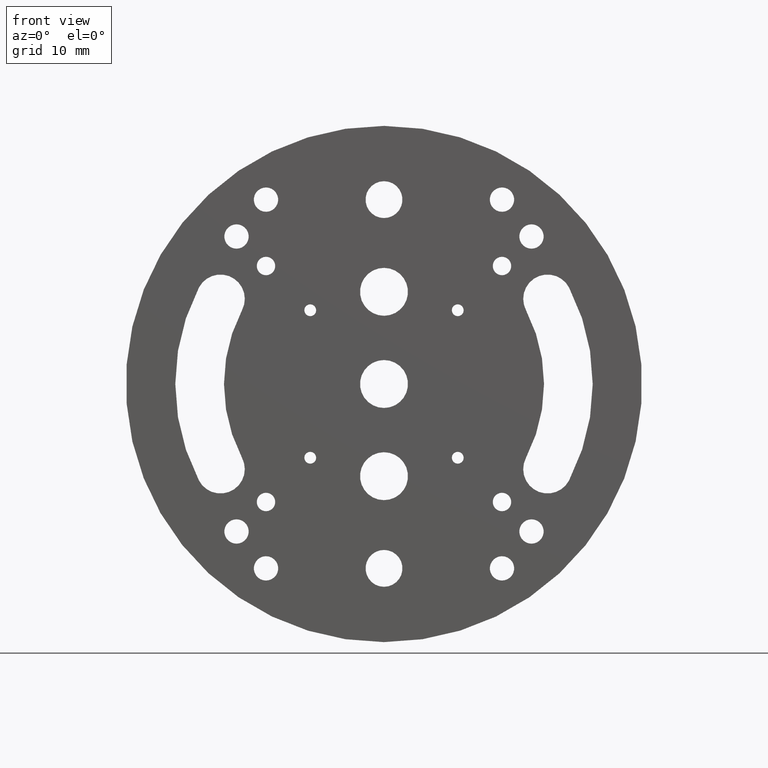
[diagram: clean part render]
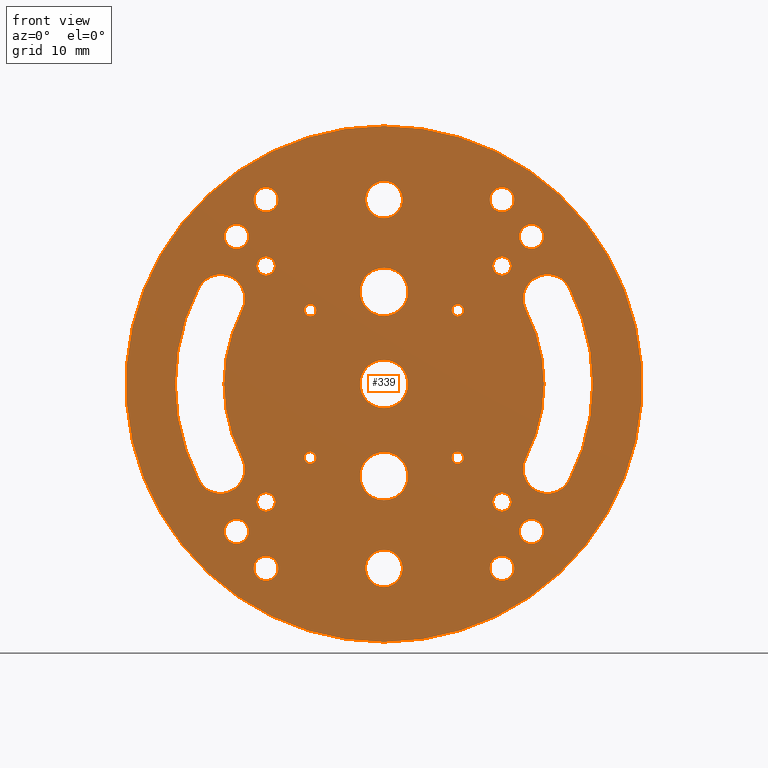
[diagram: same view with one face highlighted and labeled with its STEP entity id]
A machine part, front view. The second image highlights one B-rep face of the part: STEP entity #339.
In plain terms, the highlighted planar face has unit normal (0, 1, 0).
Its self-contained STEP definition (entity closure, byte-faithful):
#9 = FACE_BOUND ( 'NONE', #1288, .T. ) ;
#11 = AXIS2_PLACEMENT_3D ( 'NONE', #1037, #756, #1520 ) ;
#12 = CARTESIAN_POINT ( 'NONE',  ( -16.00000000000000711, 0.000000000000000000, -16.00000000000000711 ) ) ;
#16 = EDGE_LOOP ( 'NONE', ( #1379, #774, #432, #1231 ) ) ;
#21 = EDGE_LOOP ( 'NONE', ( #99 ) ) ;
#31 = DIRECTION ( 'NONE',  ( -0.000000000000000000, 1.000000000000000000, -0.000000000000000000 ) ) ;
#35 = AXIS2_PLACEMENT_3D ( 'NONE', #610, #1359, #264 ) ;
#39 = DIRECTION ( 'NONE',  ( 0.000000000000000000, 0.000000000000000000, 1.000000000000000000 ) ) ;
#41 = FACE_BOUND ( 'NONE', #1237, .T. ) ;
#47 = AXIS2_PLACEMENT_3D ( 'NONE', #836, #1149, #1155 ) ;
#50 = DIRECTION ( 'NONE',  ( 0.000000000000000000, 0.000000000000000000, 1.000000000000000000 ) ) ;
#55 = DIRECTION ( 'NONE',  ( 0.000000000000000000, 0.000000000000000000, 1.000000000000000000 ) ) ;
#56 = EDGE_LOOP ( 'NONE', ( #1708 ) ) ;
#63 = EDGE_CURVE ( 'NONE', #1917, #1917, #430, .T. ) ;
#66 = AXIS2_PLACEMENT_3D ( 'NONE', #1652, #720, #288 ) ;
#68 = ORIENTED_EDGE ( 'NONE', *, *, #1364, .T. ) ;
#81 = AXIS2_PLACEMENT_3D ( 'NONE', #190, #805, #785 ) ;
#83 = VERTEX_POINT ( 'NONE', #1605 ) ;
#87 = DIRECTION ( 'NONE',  ( -0.000000000000000000, 1.000000000000000000, -0.000000000000000000 ) ) ;
#91 = VERTEX_POINT ( 'NONE', #1130 ) ;
#96 = DIRECTION ( 'NONE',  ( 0.000000000000000000, 0.000000000000000000, 1.000000000000000000 ) ) ;
#97 = CARTESIAN_POINT ( 'NONE',  ( 22.17527082945552763, 0.000000000000000000, -11.54371533087587842 ) ) ;
#99 = ORIENTED_EDGE ( 'NONE', *, *, #1381, .T. ) ;
#125 = EDGE_LOOP ( 'NONE', ( #306 ) ) ;
#127 = CIRCLE ( 'NONE', #66, 3.300000000000002487 ) ;
#132 = ORIENTED_EDGE ( 'NONE', *, *, #917, .T. ) ;
#135 = FACE_BOUND ( 'NONE', #1560, .T. ) ;
#143 = ORIENTED_EDGE ( 'NONE', *, *, #1079, .T. ) ;
#145 = FACE_BOUND ( 'NONE', #21, .T. ) ;
#147 = AXIS2_PLACEMENT_3D ( 'NONE', #833, #1003, #1883 ) ;
#154 = EDGE_LOOP ( 'NONE', ( #1216 ) ) ;
#159 = AXIS2_PLACEMENT_3D ( 'NONE', #97, #1015, #1620 ) ;
#161 = ORIENTED_EDGE ( 'NONE', *, *, #1461, .T. ) ;
#164 = DIRECTION ( 'NONE',  ( 0.000000000000000000, 0.000000000000000000, 1.000000000000000000 ) ) ;
#177 = ORIENTED_EDGE ( 'NONE', *, *, #1976, .F. ) ;
#178 = DIRECTION ( 'NONE',  ( -0.000000000000000000, 1.000000000000000000, -0.000000000000000000 ) ) ;
#180 = CIRCLE ( 'NONE', #1292, 1.649999999999998579 ) ;
#190 = CARTESIAN_POINT ( 'NONE',  ( 6.938893903907228378E-15, 0.000000000000000000, 24.99999999999999645 ) ) ;
#196 = DIRECTION ( 'NONE',  ( 0.000000000000000000, 1.000000000000000000, 0.000000000000000000 ) ) ;
#204 = AXIS2_PLACEMENT_3D ( 'NONE', #1411, #1546, #1240 ) ;
#218 = VERTEX_POINT ( 'NONE', #1160 ) ;
#222 = CARTESIAN_POINT ( 'NONE',  ( -20.00000000000001066, 0.000000000000000000, 21.64999999999999147 ) ) ;
#226 = CARTESIAN_POINT ( 'NONE',  ( -20.00000000000001066, 0.000000000000000000, -20.00000000000000711 ) ) ;
#232 = EDGE_CURVE ( 'NONE', #83, #83, #1007, .T. ) ;
#233 = EDGE_LOOP ( 'NONE', ( #988 ) ) ;
#243 = CARTESIAN_POINT ( 'NONE',  ( 16.00000000000000000, 0.000000000000000000, 17.24999999999998934 ) ) ;
#249 = VERTEX_POINT ( 'NONE', #1756 ) ;
#260 = CARTESIAN_POINT ( 'NONE',  ( 3.469446951953614189E-15, 0.000000000000000000, -22.50000000000000355 ) ) ;
#262 = EDGE_LOOP ( 'NONE', ( #1254 ) ) ;
#264 = DIRECTION ( 'NONE',  ( 0.000000000000000000, 0.000000000000000000, 1.000000000000000000 ) ) ;
#284 = FACE_OUTER_BOUND ( 'NONE', #1510, .T. ) ;
#288 = DIRECTION ( 'NONE',  ( 0.000000000000000000, 0.000000000000000000, 1.000000000000000000 ) ) ;
#306 = ORIENTED_EDGE ( 'NONE', *, *, #232, .T. ) ;
#316 = FACE_BOUND ( 'NONE', #262, .T. ) ;
#328 = EDGE_CURVE ( 'NONE', #1441, #1407, #680, .T. ) ;
#339 = ADVANCED_FACE ( 'NONE', ( #284, #1807, #452, #1072, #135, #145, #779, #604, #769, #1363, #1206, #316, #1529, #9, #1374, #628, #1726, #1551, #1879, #1109, #484, #1868, #790, #41 ), #494, .F. ) ;
#354 = DIRECTION ( 'NONE',  ( 0.000000000000000000, -0.000000000000000000, 1.000000000000000000 ) ) ;
#361 = CIRCLE ( 'NONE', #81, 2.499999999999998668 ) ;
#362 = CARTESIAN_POINT ( 'NONE',  ( 15.99999999999999289, 0.000000000000000000, -16.00000000000000711 ) ) ;
#364 = VERTEX_POINT ( 'NONE', #809 ) ;
#373 = DIRECTION ( 'NONE',  ( -1.776356839400250465E-15, 0.000000000000000000, 1.000000000000000000 ) ) ;
#374 = VERTEX_POINT ( 'NONE', #968 ) ;
#377 = VERTEX_POINT ( 'NONE', #1707 ) ;
#386 = CARTESIAN_POINT ( 'NONE',  ( -16.00000000000000711, 0.000000000000000000, -14.75000000000000711 ) ) ;
#392 = AXIS2_PLACEMENT_3D ( 'NONE', #638, #1236, #50 ) ;
#394 = CIRCLE ( 'NONE', #47, 3.300000000000002487 ) ;
#410 = EDGE_CURVE ( 'NONE', #1418, #1418, #424, .T. ) ;
#424 = CIRCLE ( 'NONE', #1866, 1.249999999999997558 ) ;
#428 = CARTESIAN_POINT ( 'NONE',  ( 16.00000000000000000, 0.000000000000000000, -23.35000000000000142 ) ) ;
#430 = CIRCLE ( 'NONE', #622, 3.250000000000012434 ) ;
#432 = ORIENTED_EDGE ( 'NONE', *, *, #1172, .T. ) ;
#434 = EDGE_CURVE ( 'NONE', #514, #514, #613, .T. ) ;
#436 = CIRCLE ( 'NONE', #1745, 21.69999999999999218 ) ;
#440 = AXIS2_PLACEMENT_3D ( 'NONE', #748, #1967, #768 ) ;
#441 = CARTESIAN_POINT ( 'NONE',  ( 10.00000000000000178, 0.000000000000000000, 9.999999999999998224 ) ) ;
#452 = FACE_BOUND ( 'NONE', #1186, .T. ) ;
#459 = ORIENTED_EDGE ( 'NONE', *, *, #591, .T. ) ;
#478 = DIRECTION ( 'NONE',  ( 0.000000000000000000, 1.000000000000000000, 0.000000000000000000 ) ) ;
#484 = FACE_BOUND ( 'NONE', #233, .T. ) ;
#489 = ORIENTED_EDGE ( 'NONE', *, *, #766, .T. ) ;
#494 = PLANE ( 'NONE',  #1121 ) ;
#498 = CIRCLE ( 'NONE', #983, 1.250000000000001110 ) ;
#510 = ORIENTED_EDGE ( 'NONE', *, *, #645, .T. ) ;
#514 = VERTEX_POINT ( 'NONE', #1769 ) ;
#521 = CARTESIAN_POINT ( 'NONE',  ( -20.00000000000001066, 0.000000000000000000, 19.99999999999999289 ) ) ;
#527 = CIRCLE ( 'NONE', #1970, 1.249999999999999334 ) ;
#529 = CIRCLE ( 'NONE', #1714, 0.7999999999999986011 ) ;
#531 = DIRECTION ( 'NONE',  ( -0.000000000000000000, 1.000000000000000000, -0.000000000000000000 ) ) ;
#534 = DIRECTION ( 'NONE',  ( -0.000000000000000000, 1.000000000000000000, -0.000000000000000000 ) ) ;
#571 = EDGE_LOOP ( 'NONE', ( #1604 ) ) ;
#585 = CIRCLE ( 'NONE', #749, 0.7999999999999986011 ) ;
#591 = EDGE_CURVE ( 'NONE', #1586, #1586, #1881, .T. ) ;
#604 = FACE_BOUND ( 'NONE', #1862, .T. ) ;
#610 = CARTESIAN_POINT ( 'NONE',  ( 0.000000000000000000, 0.000000000000000000, 0.000000000000000000 ) ) ;
#613 = CIRCLE ( 'NONE', #392, 3.250000000000013323 ) ;
#622 = AXIS2_PLACEMENT_3D ( 'NONE', #1169, #1895, #1587 ) ;
#628 = FACE_BOUND ( 'NONE', #1246, .T. ) ;
#635 = VERTEX_POINT ( 'NONE', #868 ) ;
#636 = CIRCLE ( 'NONE', #1686, 1.649999999999998579 ) ;
#638 = CARTESIAN_POINT ( 'NONE',  ( 0.000000000000000000, 0.000000000000000000, -12.50000000000000000 ) ) ;
#645 = EDGE_CURVE ( 'NONE', #984, #984, #636, .T. ) ;
#652 = AXIS2_PLACEMENT_3D ( 'NONE', #674, #986, #1295 ) ;
#674 = CARTESIAN_POINT ( 'NONE',  ( -15.99999999999999645, 0.000000000000000000, -25.00000000000000355 ) ) ;
#679 = DIRECTION ( 'NONE',  ( 0.000000000000000000, 0.000000000000000000, 1.000000000000000000 ) ) ;
#680 = CIRCLE ( 'NONE', #11, 3.300000000000004263 ) ;
#710 = CARTESIAN_POINT ( 'NONE',  ( -19.24813507996739048, -1.734723475976807094E-15, 10.01994490720026221 ) ) ;
#711 = AXIS2_PLACEMENT_3D ( 'NONE', #1909, #87, #96 ) ;
#717 = ORIENTED_EDGE ( 'NONE', *, *, #911, .T. ) ;
#720 = DIRECTION ( 'NONE',  ( 0.000000000000000000, 1.000000000000000000, 0.000000000000000000 ) ) ;
#726 = VERTEX_POINT ( 'NONE', #260 ) ;
#748 = CARTESIAN_POINT ( 'NONE',  ( 3.469446951953614189E-15, 0.000000000000000000, -25.00000000000000000 ) ) ;
#749 = AXIS2_PLACEMENT_3D ( 'NONE', #1954, #751, #1798 ) ;
#751 = DIRECTION ( 'NONE',  ( -0.000000000000000000, 1.000000000000000000, -0.000000000000000000 ) ) ;
#755 = AXIS2_PLACEMENT_3D ( 'NONE', #1877, #1539, #1550 ) ;
#756 = DIRECTION ( 'NONE',  ( -0.000000000000000000, -1.000000000000000000, -0.000000000000000000 ) ) ;
#757 = ORIENTED_EDGE ( 'NONE', *, *, #996, .T. ) ;
#766 = EDGE_CURVE ( 'NONE', #726, #726, #1589, .T. ) ;
#768 = DIRECTION ( 'NONE',  ( 0.000000000000000000, 0.000000000000000000, 1.000000000000000000 ) ) ;
#769 = FACE_BOUND ( 'NONE', #1426, .T. ) ;
#774 = ORIENTED_EDGE ( 'NONE', *, *, #1294, .T. ) ;
#779 = FACE_BOUND ( 'NONE', #1592, .T. ) ;
#781 = CIRCLE ( 'NONE', #711, 1.649999999999998579 ) ;
#785 = DIRECTION ( 'NONE',  ( 0.000000000000000000, 0.000000000000000000, 1.000000000000000000 ) ) ;
#787 = DIRECTION ( 'NONE',  ( -0.000000000000000000, 1.000000000000000000, -0.000000000000000000 ) ) ;
#790 = FACE_BOUND ( 'NONE', #16, .T. ) ;
#795 = CARTESIAN_POINT ( 'NONE',  ( -25.10240657894365768, -1.734723475976807094E-15, 13.06748575455149819 ) ) ;
#805 = DIRECTION ( 'NONE',  ( -0.000000000000000000, 1.000000000000000000, -0.000000000000000000 ) ) ;
#809 = CARTESIAN_POINT ( 'NONE',  ( 25.10240657894365768, -1.734723475976807094E-15, 13.06748575455149819 ) ) ;
#814 = ORIENTED_EDGE ( 'NONE', *, *, #1668, .T. ) ;
#819 = VERTEX_POINT ( 'NONE', #1583 ) ;
#831 = ORIENTED_EDGE ( 'NONE', *, *, #1858, .F. ) ;
#833 = CARTESIAN_POINT ( 'NONE',  ( 0.000000000000000000, 0.000000000000000000, 0.000000000000000000 ) ) ;
#836 = CARTESIAN_POINT ( 'NONE',  ( -22.17527082945552053, 0.000000000000000000, 11.54371533087588020 ) ) ;
#847 = DIRECTION ( 'NONE',  ( 0.000000000000000000, 1.000000000000000000, 0.000000000000000000 ) ) ;
#853 = EDGE_CURVE ( 'NONE', #1659, #1659, #1224, .T. ) ;
#857 = CIRCLE ( 'NONE', #159, 3.300000000000004263 ) ;
#868 = CARTESIAN_POINT ( 'NONE',  ( 25.10240657894365413, 0.000000000000000000, -13.06748575455150174 ) ) ;
#888 = ORIENTED_EDGE ( 'NONE', *, *, #1436, .T. ) ;
#911 = EDGE_CURVE ( 'NONE', #1614, #1614, #498, .T. ) ;
#917 = EDGE_CURVE ( 'NONE', #1337, #1337, #1876, .T. ) ;
#937 = CARTESIAN_POINT ( 'NONE',  ( -9.999999999999998224, 0.000000000000000000, 9.999999999999998224 ) ) ;
#956 = ORIENTED_EDGE ( 'NONE', *, *, #1519, .T. ) ;
#965 = DIRECTION ( 'NONE',  ( -0.000000000000000000, 1.000000000000000000, -0.000000000000000000 ) ) ;
#968 = CARTESIAN_POINT ( 'NONE',  ( 19.24813507996739048, -1.734723475976807094E-15, 10.01994490720026221 ) ) ;
#978 = CARTESIAN_POINT ( 'NONE',  ( 0.000000000000000000, 0.000000000000000000, 0.000000000000000000 ) ) ;
#982 = CIRCLE ( 'NONE', #147, 28.30000000000000071 ) ;
#983 = AXIS2_PLACEMENT_3D ( 'NONE', #1234, #1265, #55 ) ;
#984 = VERTEX_POINT ( 'NONE', #222 ) ;
#986 = DIRECTION ( 'NONE',  ( -0.000000000000000000, 1.000000000000000000, -0.000000000000000000 ) ) ;
#988 = ORIENTED_EDGE ( 'NONE', *, *, #434, .T. ) ;
#996 = EDGE_CURVE ( 'NONE', #1942, #1942, #529, .T. ) ;
#998 = CARTESIAN_POINT ( 'NONE',  ( 0.000000000000000000, 0.000000000000000000, 35.00000000000000711 ) ) ;
#1003 = DIRECTION ( 'NONE',  ( -0.000000000000000000, -1.000000000000000000, -0.000000000000000000 ) ) ;
#1007 = CIRCLE ( 'NONE', #1508, 3.250000000000013323 ) ;
#1009 = VERTEX_POINT ( 'NONE', #998 ) ;
#1012 = CARTESIAN_POINT ( 'NONE',  ( 15.99999999999999289, 0.000000000000000000, -14.75000000000000888 ) ) ;
#1013 = AXIS2_PLACEMENT_3D ( 'NONE', #1522, #478, #1709 ) ;
#1015 = DIRECTION ( 'NONE',  ( 0.000000000000000000, 1.000000000000000000, 0.000000000000000000 ) ) ;
#1021 = VERTEX_POINT ( 'NONE', #1633 ) ;
#1030 = EDGE_LOOP ( 'NONE', ( #888 ) ) ;
#1033 = CIRCLE ( 'NONE', #1934, 0.7999999999999986011 ) ;
#1037 = CARTESIAN_POINT ( 'NONE',  ( -22.17527082945552763, 0.000000000000000000, -11.54371533087587842 ) ) ;
#1039 = EDGE_CURVE ( 'NONE', #377, #374, #436, .T. ) ;
#1042 = CIRCLE ( 'NONE', #1549, 21.69999999999999218 ) ;
#1064 = EDGE_CURVE ( 'NONE', #1407, #1095, #1042, .T. ) ;
#1072 = FACE_BOUND ( 'NONE', #1725, .T. ) ;
#1079 = EDGE_CURVE ( 'NONE', #1479, #1479, #180, .T. ) ;
#1081 = CARTESIAN_POINT ( 'NONE',  ( 0.000000000000000000, 0.000000000000000000, 0.000000000000000000 ) ) ;
#1085 = CARTESIAN_POINT ( 'NONE',  ( 19.99999999999998934, 0.000000000000000000, -20.00000000000000711 ) ) ;
#1095 = VERTEX_POINT ( 'NONE', #710 ) ;
#1109 = FACE_BOUND ( 'NONE', #1758, .T. ) ;
#1111 = EDGE_CURVE ( 'NONE', #635, #377, #857, .T. ) ;
#1121 = AXIS2_PLACEMENT_3D ( 'NONE', #1081, #196, #354 ) ;
#1130 = CARTESIAN_POINT ( 'NONE',  ( 19.99999999999998934, 0.000000000000000000, -18.35000000000000853 ) ) ;
#1139 = ORIENTED_EDGE ( 'NONE', *, *, #1306, .T. ) ;
#1145 = CARTESIAN_POINT ( 'NONE',  ( 16.00000000000000355, 0.000000000000000000, 24.99999999999999645 ) ) ;
#1146 = ORIENTED_EDGE ( 'NONE', *, *, #63, .T. ) ;
#1149 = DIRECTION ( 'NONE',  ( -0.000000000000000000, -1.000000000000000000, -0.000000000000000000 ) ) ;
#1155 = DIRECTION ( 'NONE',  ( 0.000000000000000000, 0.000000000000000000, 1.000000000000000000 ) ) ;
#1160 = CARTESIAN_POINT ( 'NONE',  ( -15.99999999999999645, 0.000000000000000000, -23.35000000000000497 ) ) ;
#1162 = CARTESIAN_POINT ( 'NONE',  ( -16.00000000000000000, 0.000000000000000000, 17.24999999999999289 ) ) ;
#1169 = CARTESIAN_POINT ( 'NONE',  ( 0.000000000000000000, 0.000000000000000000, 0.000000000000000000 ) ) ;
#1170 = CARTESIAN_POINT ( 'NONE',  ( -20.00000000000001066, 0.000000000000000000, -18.35000000000000853 ) ) ;
#1172 = EDGE_CURVE ( 'NONE', #364, #635, #1691, .T. ) ;
#1185 = CIRCLE ( 'NONE', #204, 1.649999999999998579 ) ;
#1186 = EDGE_LOOP ( 'NONE', ( #132 ) ) ;
#1203 = DIRECTION ( 'NONE',  ( 0.000000000000000000, 0.000000000000000000, 1.000000000000000000 ) ) ;
#1206 = FACE_BOUND ( 'NONE', #571, .T. ) ;
#1211 = EDGE_LOOP ( 'NONE', ( #717 ) ) ;
#1216 = ORIENTED_EDGE ( 'NONE', *, *, #1393, .T. ) ;
#1224 = CIRCLE ( 'NONE', #1448, 1.249999999999997558 ) ;
#1231 = ORIENTED_EDGE ( 'NONE', *, *, #1111, .T. ) ;
#1234 = CARTESIAN_POINT ( 'NONE',  ( -16.00000000000000000, 0.000000000000000000, 15.99999999999999289 ) ) ;
#1236 = DIRECTION ( 'NONE',  ( -0.000000000000000000, 1.000000000000000000, -0.000000000000000000 ) ) ;
#1237 = EDGE_LOOP ( 'NONE', ( #1647, #1437, #1526, #177 ) ) ;
#1240 = DIRECTION ( 'NONE',  ( 0.000000000000000000, 0.000000000000000000, 1.000000000000000000 ) ) ;
#1243 = CARTESIAN_POINT ( 'NONE',  ( 16.00000000000000000, 0.000000000000000000, 15.99999999999999289 ) ) ;
#1246 = EDGE_LOOP ( 'NONE', ( #757 ) ) ;
#1252 = DIRECTION ( 'NONE',  ( -0.000000000000000000, 1.000000000000000000, -0.000000000000000000 ) ) ;
#1254 = ORIENTED_EDGE ( 'NONE', *, *, #853, .T. ) ;
#1265 = DIRECTION ( 'NONE',  ( -0.000000000000000000, 1.000000000000000000, -0.000000000000000000 ) ) ;
#1282 = AXIS2_PLACEMENT_3D ( 'NONE', #1085, #1252, #164 ) ;
#1287 = CARTESIAN_POINT ( 'NONE',  ( -10.00000000000000000, 0.000000000000000000, -10.00000000000000178 ) ) ;
#1288 = EDGE_LOOP ( 'NONE', ( #1139 ) ) ;
#1292 = AXIS2_PLACEMENT_3D ( 'NONE', #226, #1459, #1303 ) ;
#1294 = EDGE_CURVE ( 'NONE', #374, #364, #127, .T. ) ;
#1295 = DIRECTION ( 'NONE',  ( 0.000000000000000000, 0.000000000000000000, 1.000000000000000000 ) ) ;
#1303 = DIRECTION ( 'NONE',  ( 0.000000000000000000, 0.000000000000000000, 1.000000000000000000 ) ) ;
#1306 = EDGE_CURVE ( 'NONE', #1021, #1021, #1593, .T. ) ;
#1322 = DIRECTION ( 'NONE',  ( -0.000000000000000000, 1.000000000000000000, -0.000000000000000000 ) ) ;
#1337 = VERTEX_POINT ( 'NONE', #1808 ) ;
#1338 = EDGE_LOOP ( 'NONE', ( #489 ) ) ;
#1357 = AXIS2_PLACEMENT_3D ( 'NONE', #441, #1322, #1203 ) ;
#1359 = DIRECTION ( 'NONE',  ( 0.000000000000000000, 1.000000000000000000, 0.000000000000000000 ) ) ;
#1363 = FACE_BOUND ( 'NONE', #1211, .T. ) ;
#1364 = EDGE_CURVE ( 'NONE', #1796, #1796, #1185, .T. ) ;
#1374 = FACE_BOUND ( 'NONE', #1462, .T. ) ;
#1379 = ORIENTED_EDGE ( 'NONE', *, *, #1039, .T. ) ;
#1381 = EDGE_CURVE ( 'NONE', #91, #91, #1768, .T. ) ;
#1386 = DIRECTION ( 'NONE',  ( 0.000000000000000000, 0.000000000000000000, 1.000000000000000000 ) ) ;
#1393 = EDGE_CURVE ( 'NONE', #819, #819, #1033, .T. ) ;
#1407 = VERTEX_POINT ( 'NONE', #1535 ) ;
#1411 = CARTESIAN_POINT ( 'NONE',  ( 16.00000000000000000, 0.000000000000000000, -25.00000000000000000 ) ) ;
#1418 = VERTEX_POINT ( 'NONE', #243 ) ;
#1426 = EDGE_LOOP ( 'NONE', ( #161 ) ) ;
#1436 = EDGE_CURVE ( 'NONE', #1775, #1775, #361, .T. ) ;
#1437 = ORIENTED_EDGE ( 'NONE', *, *, #1064, .F. ) ;
#1438 = CARTESIAN_POINT ( 'NONE',  ( 0.000000000000000000, 0.000000000000000000, 3.250000000000012434 ) ) ;
#1441 = VERTEX_POINT ( 'NONE', #1845 ) ;
#1448 = AXIS2_PLACEMENT_3D ( 'NONE', #362, #787, #39 ) ;
#1459 = DIRECTION ( 'NONE',  ( -0.000000000000000000, 1.000000000000000000, -0.000000000000000000 ) ) ;
#1461 = EDGE_CURVE ( 'NONE', #218, #218, #1904, .T. ) ;
#1462 = EDGE_LOOP ( 'NONE', ( #814 ) ) ;
#1479 = VERTEX_POINT ( 'NONE', #1170 ) ;
#1489 = CARTESIAN_POINT ( 'NONE',  ( -10.00000000000000000, 0.000000000000000000, -9.200000000000002842 ) ) ;
#1492 = EDGE_CURVE ( 'NONE', #1095, #1804, #394, .T. ) ;
#1508 = AXIS2_PLACEMENT_3D ( 'NONE', #1960, #1816, #1825 ) ;
#1510 = EDGE_LOOP ( 'NONE', ( #831 ) ) ;
#1519 = EDGE_CURVE ( 'NONE', #249, #249, #781, .T. ) ;
#1520 = DIRECTION ( 'NONE',  ( 0.000000000000000000, 0.000000000000000000, 1.000000000000000000 ) ) ;
#1522 = CARTESIAN_POINT ( 'NONE',  ( 0.000000000000000000, 0.000000000000000000, 0.000000000000000000 ) ) ;
#1526 = ORIENTED_EDGE ( 'NONE', *, *, #328, .F. ) ;
#1529 = FACE_BOUND ( 'NONE', #56, .T. ) ;
#1535 = CARTESIAN_POINT ( 'NONE',  ( -19.24813507996739048, 0.000000000000000000, -10.01994490720026221 ) ) ;
#1539 = DIRECTION ( 'NONE',  ( -0.000000000000000000, 1.000000000000000000, -0.000000000000000000 ) ) ;
#1546 = DIRECTION ( 'NONE',  ( -0.000000000000000000, 1.000000000000000000, -0.000000000000000000 ) ) ;
#1547 = CIRCLE ( 'NONE', #1013, 35.00000000000000711 ) ;
#1549 = AXIS2_PLACEMENT_3D ( 'NONE', #1591, #847, #1938 ) ;
#1550 = DIRECTION ( 'NONE',  ( 0.000000000000000000, 0.000000000000000000, 1.000000000000000000 ) ) ;
#1551 = FACE_BOUND ( 'NONE', #1030, .T. ) ;
#1560 = EDGE_LOOP ( 'NONE', ( #956 ) ) ;
#1583 = CARTESIAN_POINT ( 'NONE',  ( -9.999999999999998224, 0.000000000000000000, 10.79999999999999716 ) ) ;
#1586 = VERTEX_POINT ( 'NONE', #1894 ) ;
#1587 = DIRECTION ( 'NONE',  ( 0.000000000000000000, 0.000000000000000000, 1.000000000000000000 ) ) ;
#1589 = CIRCLE ( 'NONE', #440, 2.499999999999998668 ) ;
#1591 = CARTESIAN_POINT ( 'NONE',  ( 0.000000000000000000, 0.000000000000000000, 0.000000000000000000 ) ) ;
#1592 = EDGE_LOOP ( 'NONE', ( #68 ) ) ;
#1593 = CIRCLE ( 'NONE', #1357, 0.7999999999999986011 ) ;
#1604 = ORIENTED_EDGE ( 'NONE', *, *, #410, .T. ) ;
#1605 = CARTESIAN_POINT ( 'NONE',  ( 0.000000000000000000, 0.000000000000000000, 15.75000000000001421 ) ) ;
#1614 = VERTEX_POINT ( 'NONE', #1162 ) ;
#1620 = DIRECTION ( 'NONE',  ( 0.000000000000000000, 0.000000000000000000, 1.000000000000000000 ) ) ;
#1622 = VERTEX_POINT ( 'NONE', #386 ) ;
#1630 = DIRECTION ( 'NONE',  ( 0.000000000000000000, 0.000000000000000000, 1.000000000000000000 ) ) ;
#1633 = CARTESIAN_POINT ( 'NONE',  ( 10.00000000000000178, 0.000000000000000000, 10.79999999999999716 ) ) ;
#1647 = ORIENTED_EDGE ( 'NONE', *, *, #1492, .F. ) ;
#1652 = CARTESIAN_POINT ( 'NONE',  ( 22.17527082945552053, 0.000000000000000000, 11.54371533087588020 ) ) ;
#1659 = VERTEX_POINT ( 'NONE', #1012 ) ;
#1668 = EDGE_CURVE ( 'NONE', #1924, #1924, #585, .T. ) ;
#1686 = AXIS2_PLACEMENT_3D ( 'NONE', #521, #1933, #1757 ) ;
#1691 = CIRCLE ( 'NONE', #35, 28.30000000000000071 ) ;
#1693 = DIRECTION ( 'NONE',  ( 0.000000000000000000, 0.000000000000000000, 1.000000000000000000 ) ) ;
#1707 = CARTESIAN_POINT ( 'NONE',  ( 19.24813507996739403, -1.734723475976807094E-15, -10.01994490720026398 ) ) ;
#1708 = ORIENTED_EDGE ( 'NONE', *, *, #1921, .T. ) ;
#1709 = DIRECTION ( 'NONE',  ( 0.000000000000000000, 0.000000000000000000, 1.000000000000000000 ) ) ;
#1714 = AXIS2_PLACEMENT_3D ( 'NONE', #1287, #531, #1753 ) ;
#1725 = EDGE_LOOP ( 'NONE', ( #459 ) ) ;
#1726 = FACE_BOUND ( 'NONE', #154, .T. ) ;
#1742 = DIRECTION ( 'NONE',  ( -0.000000000000000000, -1.000000000000000000, -0.000000000000000000 ) ) ;
#1745 = AXIS2_PLACEMENT_3D ( 'NONE', #978, #1742, #373 ) ;
#1746 = CARTESIAN_POINT ( 'NONE',  ( 6.938893903907228378E-15, 0.000000000000000000, 27.49999999999999645 ) ) ;
#1752 = AXIS2_PLACEMENT_3D ( 'NONE', #1145, #534, #1630 ) ;
#1753 = DIRECTION ( 'NONE',  ( 0.000000000000000000, 0.000000000000000000, 1.000000000000000000 ) ) ;
#1756 = CARTESIAN_POINT ( 'NONE',  ( 19.99999999999999645, 0.000000000000000000, 21.64999999999999147 ) ) ;
#1757 = DIRECTION ( 'NONE',  ( 0.000000000000000000, 0.000000000000000000, 1.000000000000000000 ) ) ;
#1758 = EDGE_LOOP ( 'NONE', ( #1146 ) ) ;
#1768 = CIRCLE ( 'NONE', #1282, 1.649999999999998579 ) ;
#1769 = CARTESIAN_POINT ( 'NONE',  ( 0.000000000000000000, 0.000000000000000000, -9.249999999999987566 ) ) ;
#1775 = VERTEX_POINT ( 'NONE', #1746 ) ;
#1796 = VERTEX_POINT ( 'NONE', #428 ) ;
#1798 = DIRECTION ( 'NONE',  ( 0.000000000000000000, 0.000000000000000000, 1.000000000000000000 ) ) ;
#1804 = VERTEX_POINT ( 'NONE', #795 ) ;
#1807 = FACE_BOUND ( 'NONE', #1819, .T. ) ;
#1808 = CARTESIAN_POINT ( 'NONE',  ( -15.99999999999998934, 0.000000000000000000, 26.64999999999999503 ) ) ;
#1816 = DIRECTION ( 'NONE',  ( -0.000000000000000000, 1.000000000000000000, -0.000000000000000000 ) ) ;
#1819 = EDGE_LOOP ( 'NONE', ( #510 ) ) ;
#1825 = DIRECTION ( 'NONE',  ( 0.000000000000000000, 0.000000000000000000, 1.000000000000000000 ) ) ;
#1845 = CARTESIAN_POINT ( 'NONE',  ( -25.10240657894365413, -1.734723475976807094E-15, -13.06748575455150174 ) ) ;
#1858 = EDGE_CURVE ( 'NONE', #1009, #1009, #1547, .T. ) ;
#1862 = EDGE_LOOP ( 'NONE', ( #143 ) ) ;
#1866 = AXIS2_PLACEMENT_3D ( 'NONE', #1243, #31, #1386 ) ;
#1868 = FACE_BOUND ( 'NONE', #125, .T. ) ;
#1876 = CIRCLE ( 'NONE', #755, 1.649999999999998579 ) ;
#1877 = CARTESIAN_POINT ( 'NONE',  ( -15.99999999999998934, 0.000000000000000000, 24.99999999999999645 ) ) ;
#1879 = FACE_BOUND ( 'NONE', #1338, .T. ) ;
#1881 = CIRCLE ( 'NONE', #1752, 1.649999999999998579 ) ;
#1883 = DIRECTION ( 'NONE',  ( 0.000000000000000000, 0.000000000000000000, 1.000000000000000000 ) ) ;
#1889 = CARTESIAN_POINT ( 'NONE',  ( 10.00000000000000000, 0.000000000000000000, -9.200000000000002842 ) ) ;
#1894 = CARTESIAN_POINT ( 'NONE',  ( 16.00000000000000355, 0.000000000000000000, 26.64999999999999503 ) ) ;
#1895 = DIRECTION ( 'NONE',  ( -0.000000000000000000, 1.000000000000000000, -0.000000000000000000 ) ) ;
#1904 = CIRCLE ( 'NONE', #652, 1.649999999999998579 ) ;
#1909 = CARTESIAN_POINT ( 'NONE',  ( 19.99999999999999645, 0.000000000000000000, 19.99999999999999289 ) ) ;
#1917 = VERTEX_POINT ( 'NONE', #1438 ) ;
#1921 = EDGE_CURVE ( 'NONE', #1622, #1622, #527, .T. ) ;
#1924 = VERTEX_POINT ( 'NONE', #1889 ) ;
#1933 = DIRECTION ( 'NONE',  ( -0.000000000000000000, 1.000000000000000000, -0.000000000000000000 ) ) ;
#1934 = AXIS2_PLACEMENT_3D ( 'NONE', #937, #965, #1693 ) ;
#1938 = DIRECTION ( 'NONE',  ( 0.000000000000000000, 0.000000000000000000, 1.000000000000000000 ) ) ;
#1942 = VERTEX_POINT ( 'NONE', #1489 ) ;
#1954 = CARTESIAN_POINT ( 'NONE',  ( 10.00000000000000000, 0.000000000000000000, -10.00000000000000178 ) ) ;
#1960 = CARTESIAN_POINT ( 'NONE',  ( 0.000000000000000000, 0.000000000000000000, 12.50000000000000000 ) ) ;
#1967 = DIRECTION ( 'NONE',  ( -0.000000000000000000, 1.000000000000000000, -0.000000000000000000 ) ) ;
#1970 = AXIS2_PLACEMENT_3D ( 'NONE', #12, #178, #679 ) ;
#1976 = EDGE_CURVE ( 'NONE', #1804, #1441, #982, .T. ) ;